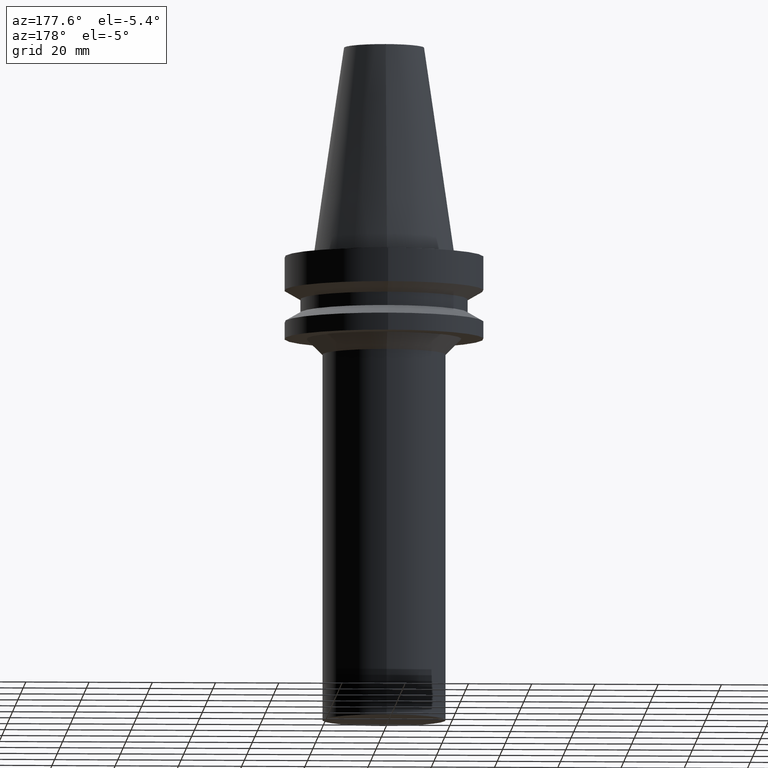
[diagram: clean part render]
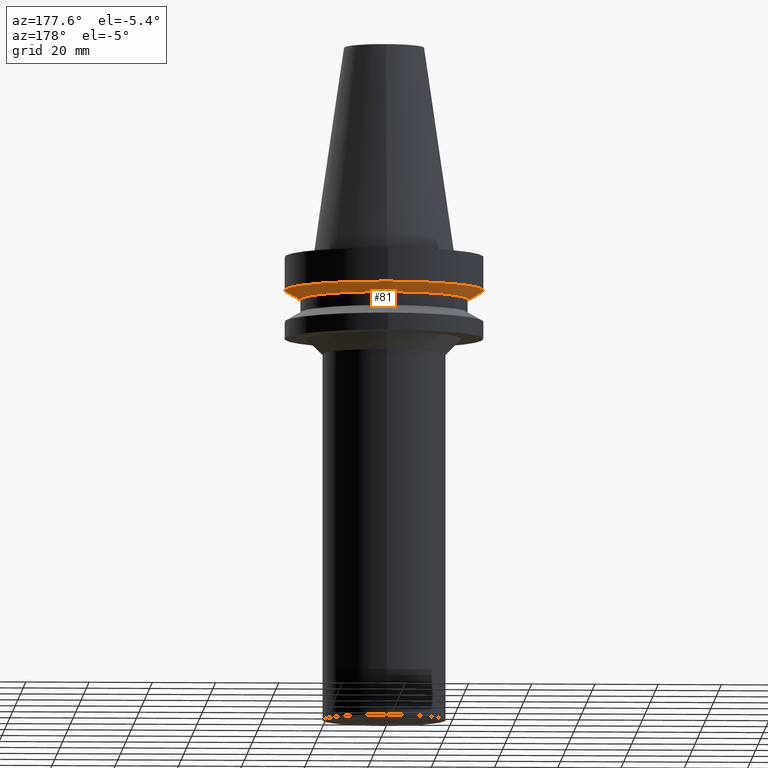
[diagram: same view with one face highlighted and labeled with its STEP entity id]
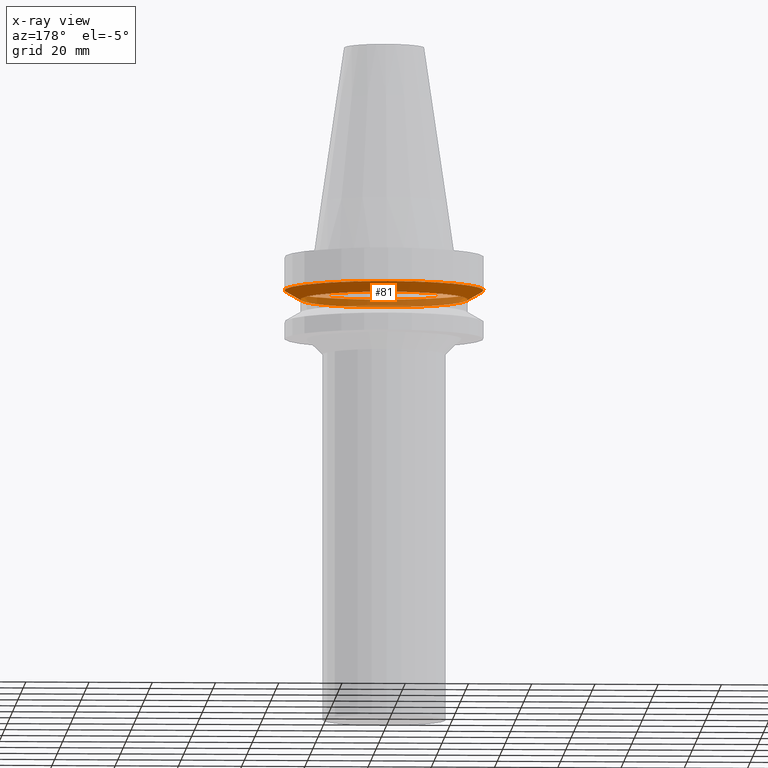
[diagram: x-ray of the same camera — body ghosted, the highlighted face saturated]
A machine part, auxiliary view. The second image highlights one B-rep face of the part: STEP entity #81.
The next image is the same camera in x-ray: the body ghosted, the highlighted face saturated — about 34% of this face is hidden behind the body in this view.
In plain terms, the highlighted conical surface has half-angle 60 deg.
Its self-contained STEP definition (entity closure, byte-faithful):
#81=ADVANCED_FACE('',(#105,#106),#107,.T.);
#105=FACE_BOUND('',#142,.T.);
#106=FACE_BOUND('',#143,.T.);
#107=CONICAL_SURFACE('',#144,29.0,1.04719755058882);
#142=EDGE_LOOP('',(#191));
#143=EDGE_LOOP('',(#192));
#144=AXIS2_PLACEMENT_3D('',#193,#194,#195);
#191=ORIENTED_EDGE('',*,*,#232,.F.);
#192=ORIENTED_EDGE('',*,*,#231,.T.);
#193=CARTESIAN_POINT('',(7.98676413523259E-016,1.59735282704652E-015,-13.043375675));
#194=DIRECTION('',(-6.12323399573677E-017,-1.22464679914735E-016,1.0));
#195=DIRECTION('',(-1.23259516440783E-032,1.0,1.22464679914735E-016));
#231=EDGE_CURVE('',#248,#248,#249,.T.);
#232=EDGE_CURVE('',#250,#250,#251,.T.);
#248=VERTEX_POINT('',#272);
#249=CIRCLE('',#273,31.5);
#250=VERTEX_POINT('',#274);
#251=CIRCLE('',#275,26.5);
#272=CARTESIAN_POINT('',(7.10295143505464E-016,31.5,-11.6));
#273=AXIS2_PLACEMENT_3D('',#301,#302,#303);
#274=CARTESIAN_POINT('',(8.87057683541055E-016,26.5,-14.48675135));
#275=AXIS2_PLACEMENT_3D('',#304,#305,#306);
#301=CARTESIAN_POINT('',(7.10295143505464E-016,1.42059028701093E-015,-11.6));
#302=DIRECTION('',(6.12323399573677E-017,1.22464679914735E-016,-1.0));
#303=DIRECTION('',(-1.23259516440783E-032,1.0,1.22464679914735E-016));
#304=CARTESIAN_POINT('',(8.87057683541054E-016,1.77411536708211E-015,-14.48675135));
#305=DIRECTION('',(6.12323399573677E-017,1.22464679914735E-016,-1.0));
#306=DIRECTION('',(-1.23259516440783E-032,1.0,1.22464679914735E-016));